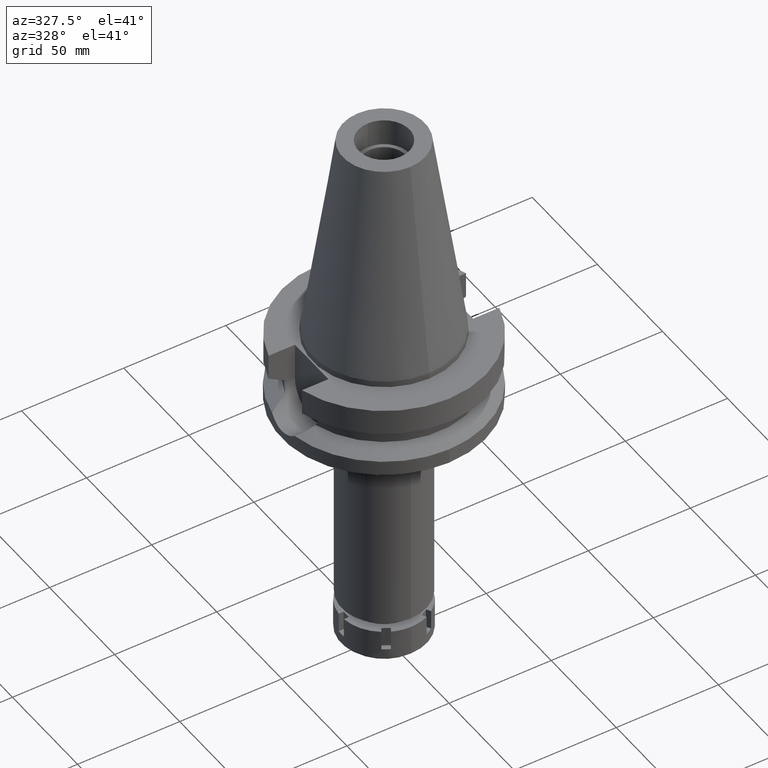
[diagram: clean part render]
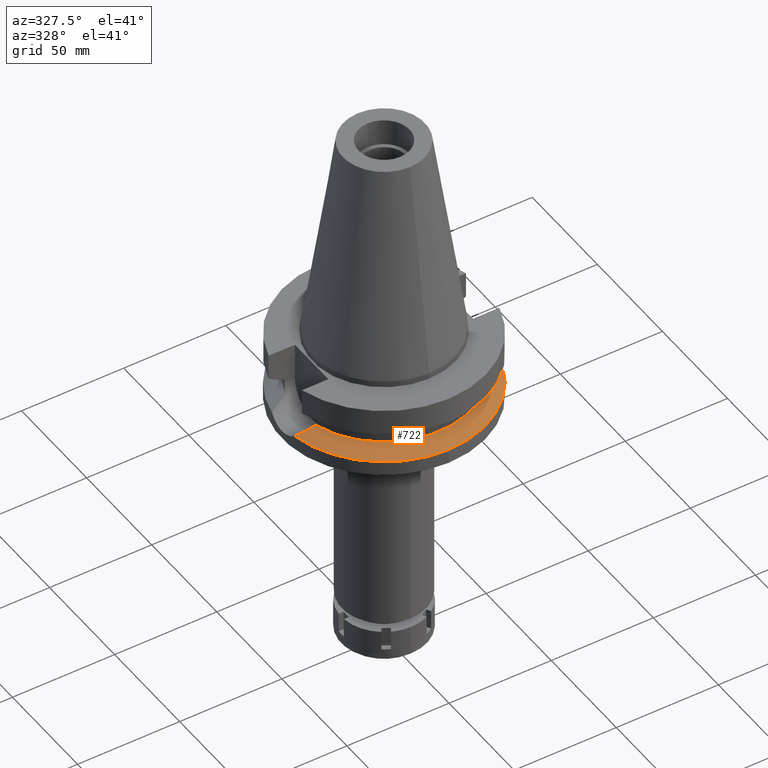
[diagram: same view with one face highlighted and labeled with its STEP entity id]
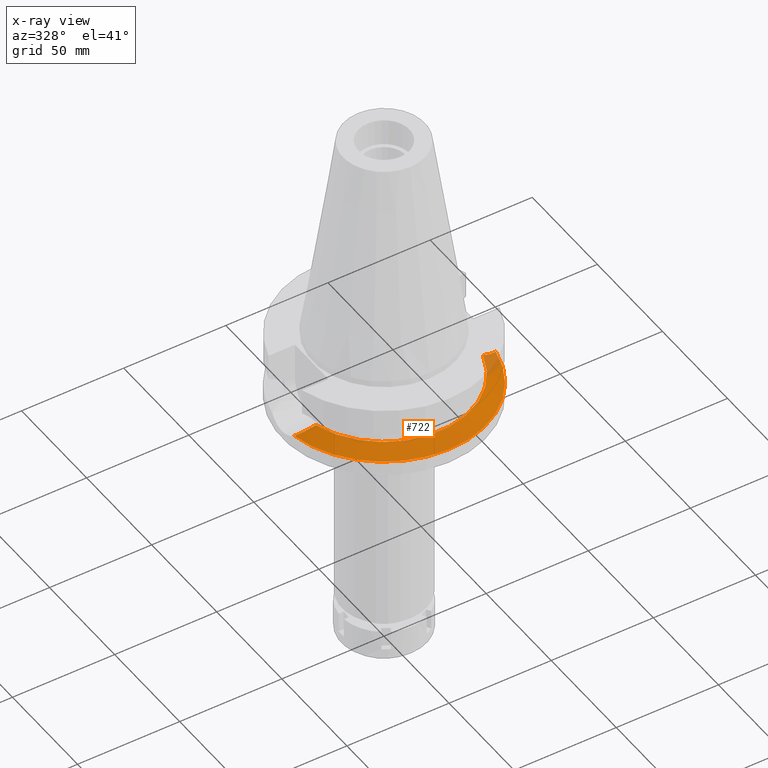
[diagram: x-ray of the same camera — body ghosted, the highlighted face saturated]
A machine part, auxiliary view. The second image highlights one B-rep face of the part: STEP entity #722.
The next image is the same camera in x-ray: the body ghosted, the highlighted face saturated — about 5% of this face is hidden behind the body in this view.
In plain terms, the highlighted conical surface has half-angle 60 deg.
Its self-contained STEP definition (entity closure, byte-faithful):
#10 = EDGE_LOOP ( 'NONE', ( #897, #3430, #1934, #252, #3532 ) ) ;
#27 = VERTEX_POINT ( 'NONE', #1557 ) ;
#72 = CARTESIAN_POINT ( 'NONE',  ( 44.08652366158886338, -10.82399127850445275, -28.07919682956623930 ) ) ;
#114 = CARTESIAN_POINT ( 'NONE',  ( -45.64115514236537763, -10.26608050230839808, -28.87892092315642500 ) ) ;
#131 = CARTESIAN_POINT ( 'NONE',  ( -46.22851604990404439, -10.03196276948648880, -29.18092708367271726 ) ) ;
#141 = CARTESIAN_POINT ( 'NONE',  ( 0.0000000000000000000, 0.0000000000000000000, -30.73730776426999967 ) ) ;
#150 = CARTESIAN_POINT ( 'NONE',  ( -45.47947479145116745, -10.32794287722815874, -28.79575928904283799 ) ) ;
#211 = CARTESIAN_POINT ( 'NONE',  ( 40.85052569294000335, -11.72538061688000077, -26.40718074535000426 ) ) ;
#222 = AXIS2_PLACEMENT_3D ( 'NONE', #141, #2730, #3286 ) ;
#252 = ORIENTED_EDGE ( 'NONE', *, *, #575, .F. ) ;
#283 = CARTESIAN_POINT ( 'NONE',  ( -49.26250064874000145, -8.556052234130000045, -30.73730776426999967 ) ) ;
#299 = VERTEX_POINT ( 'NONE', #211 ) ;
#342 = EDGE_CURVE ( 'NONE', #3143, #2336, #686, .T. ) ;
#363 = CARTESIAN_POINT ( 'NONE',  ( -45.96082933335384269, -10.14111845749937402, -29.04331959134392704 ) ) ;
#379 = CARTESIAN_POINT ( 'NONE',  ( -48.69472545312260081, -8.881879085636674276, -30.44652836828989706 ) ) ;
#418 = FACE_OUTER_BOUND ( 'NONE', #10, .T. ) ;
#575 = EDGE_CURVE ( 'NONE', #27, #299, #1780, .T. ) ;
#641 = VERTEX_POINT ( 'NONE', #1266 ) ;
#686 = CIRCLE ( 'NONE', #222, 50.00000000000000000 ) ;
#692 = EDGE_CURVE ( 'NONE', #2336, #27, #1781, .T. ) ;
#722 = ADVANCED_FACE ( 'NONE', ( #418 ), #3495, .T. ) ;
#724 = B_SPLINE_CURVE_WITH_KNOTS ( 'NONE', 3,
 ( #2347, #1509, #2937, #2640, #72, #1223, #2080, #3490, #936, #3211, #806, #2517, #828, #1903, #3350 ),
 .UNSPECIFIED., .F., .F.,
 ( 4, 2, 2, 1, 1, 1, 2, 2, 4 ),
 ( 0.0000000000000000000, 0.2500000000000003331, 0.3750000000000014988, 0.4375000000000023315, 0.4687500000000027756, 0.4843750000000040523, 0.4921875000000048295, 0.5000000000000055511, 1.000000000000000000 ),
 .UNSPECIFIED. ) ;
#740 = AXIS2_PLACEMENT_3D ( 'NONE', #1227, #3296, #1904 ) ;
#745 = AXIS2_PLACEMENT_3D ( 'NONE', #2997, #1513, #2644 ) ;
#806 = CARTESIAN_POINT ( 'NONE',  ( 45.45376346329539530, -10.33741897416011746, -28.78285341246331797 ) ) ;
#828 = CARTESIAN_POINT ( 'NONE',  ( 46.91867690740803454, -9.778675819256957169, -29.53630061612208024 ) ) ;
#897 = ORIENTED_EDGE ( 'NONE', *, *, #342, .F. ) ;
#904 = DIRECTION ( 'NONE',  ( 0.0000000000000000000, 0.0000000000000000000, 1.000000000000000000 ) ) ;
#936 = CARTESIAN_POINT ( 'NONE',  ( 45.34795488205713809, -10.37743536144881595, -28.72843099741480088 ) ) ;
#984 = CARTESIAN_POINT ( 'NONE',  ( 0.0000000000000000000, -50.00000000000000000, -30.73730776426999967 ) ) ;
#1223 = CARTESIAN_POINT ( 'NONE',  ( 44.62925775102691972, -10.63815907006330619, -28.35864658413995798 ) ) ;
#1227 = CARTESIAN_POINT ( 'NONE',  ( 0.0000000000000000000, 0.0000000000000000000, -30.73730776426999967 ) ) ;
#1266 = CARTESIAN_POINT ( 'NONE',  ( 49.26250064874000145, -8.556052234130000045, -30.73730776426999967 ) ) ;
#1281 = CARTESIAN_POINT ( 'NONE',  ( -40.85052569294000335, -11.72538061688000077, -26.40718074535000426 ) ) ;
#1509 = CARTESIAN_POINT ( 'NONE',  ( 41.72591166032965759, -11.52209110050590013, -26.86058858319618636 ) ) ;
#1513 = DIRECTION ( 'NONE',  ( 0.0000000000000000000, 0.0000000000000000000, -1.000000000000000000 ) ) ;
#1546 = CARTESIAN_POINT ( 'NONE',  ( -42.52912223676329262, -11.33556276247899497, -27.27661303910516821 ) ) ;
#1557 = CARTESIAN_POINT ( 'NONE',  ( -40.85052569294000335, -11.72538061688000077, -26.40718074535000426 ) ) ;
#1715 = CIRCLE ( 'NONE', #740, 50.00000000000000000 ) ;
#1780 = CIRCLE ( 'NONE', #2728, 42.50000000000000000 ) ;
#1781 = B_SPLINE_CURVE_WITH_KNOTS ( 'NONE', 3,
 ( #2920, #379, #2156, #2699, #2119, #131, #363, #114, #150, #3548, #3273, #2716, #3253, #2349, #1546, #1281 ),
 .UNSPECIFIED., .F., .F.,
 ( 4, 2, 2, 1, 1, 1, 1, 2, 2, 4 ),
 ( 0.0000000000000000000, 0.2500000000000850986, 0.3750000000001287859, 0.4375000000001507128, 0.4687500000001624811, 0.4843750000001693090, 0.4921875000001726952, 0.4960937500001733058, 0.5000000000001738609, 1.000000000000000000 ),
 .UNSPECIFIED. ) ;
#1903 = CARTESIAN_POINT ( 'NONE',  ( 48.17421731096948179, -9.180580984649372667, -30.17995623842555730 ) ) ;
#1904 = DIRECTION ( 'NONE',  ( 0.9852500129747439050, -0.1711210446826074982, 0.0000000000000000000 ) ) ;
#1934 = ORIENTED_EDGE ( 'NONE', *, *, #2493, .F. ) ;
#2041 = DIRECTION ( 'NONE',  ( 0.0000000000000000000, -1.000000000000000000, 0.0000000000000000000 ) ) ;
#2080 = CARTESIAN_POINT ( 'NONE',  ( 44.89588290465827214, -10.54427413037512906, -28.49587143876511419 ) ) ;
#2119 = CARTESIAN_POINT ( 'NONE',  ( -46.75546317251308892, -9.811123057261683655, -29.45172462093226429 ) ) ;
#2156 = CARTESIAN_POINT ( 'NONE',  ( -48.08200993488475916, -9.200174691293726781, -30.13261548871570383 ) ) ;
#2209 = EDGE_CURVE ( 'NONE', #641, #3143, #1715, .T. ) ;
#2336 = VERTEX_POINT ( 'NONE', #283 ) ;
#2347 = CARTESIAN_POINT ( 'NONE',  ( 40.85052569294000335, -11.72538061688000077, -26.40718074535000426 ) ) ;
#2349 = CARTESIAN_POINT ( 'NONE',  ( -44.01780220698003632, -10.87568674646942846, -28.04382532369646341 ) ) ;
#2493 = EDGE_CURVE ( 'NONE', #299, #641, #724, .T. ) ;
#2517 = CARTESIAN_POINT ( 'NONE',  ( 45.47364822759700331, -10.32986049036476572, -28.79308085105692072 ) ) ;
#2640 = CARTESIAN_POINT ( 'NONE',  ( 43.71205589239633582, -10.94529851844949953, -27.88622673543954278 ) ) ;
#2644 = DIRECTION ( 'NONE',  ( 0.0000000000000000000, -1.000000000000000000, 0.0000000000000000000 ) ) ;
#2699 = CARTESIAN_POINT ( 'NONE',  ( -47.09552617359732807, -9.660526748469512981, -29.62636400729780917 ) ) ;
#2716 = CARTESIAN_POINT ( 'NONE',  ( -45.33991514702245240, -10.38063357216712390, -28.72396869562930632 ) ) ;
#2728 = AXIS2_PLACEMENT_3D ( 'NONE', #3476, #904, #2041 ) ;
#2730 = DIRECTION ( 'NONE',  ( 0.0000000000000000000, 0.0000000000000000000, -1.000000000000000000 ) ) ;
#2920 = CARTESIAN_POINT ( 'NONE',  ( -49.26250064874000145, -8.556052234130000045, -30.73730776426999967 ) ) ;
#2937 = CARTESIAN_POINT ( 'NONE',  ( 42.55071745611744660, -11.29929319511106023, -27.28707702801668233 ) ) ;
#2997 = CARTESIAN_POINT ( 'NONE',  ( 0.0000000000000000000, 0.0000000000000000000, -28.57224425480999841 ) ) ;
#3143 = VERTEX_POINT ( 'NONE', #984 ) ;
#3211 = CARTESIAN_POINT ( 'NONE',  ( 45.41149930443869920, -10.35343463059610514, -28.76111513600022462 ) ) ;
#3253 = CARTESIAN_POINT ( 'NONE',  ( -45.32671219262632434, -10.38558514207444361, -28.71717668202665408 ) ) ;
#3273 = CARTESIAN_POINT ( 'NONE',  ( -45.36323177517924421, -10.37187135454996678, -28.73596333807657643 ) ) ;
#3286 = DIRECTION ( 'NONE',  ( 0.0000000000000000000, -1.000000000000000000, 0.0000000000000000000 ) ) ;
#3296 = DIRECTION ( 'NONE',  ( 0.0000000000000000000, 0.0000000000000000000, -1.000000000000000000 ) ) ;
#3350 = CARTESIAN_POINT ( 'NONE',  ( 49.26250064874000145, -8.556052234130000045, -30.73730776426999967 ) ) ;
#3430 = ORIENTED_EDGE ( 'NONE', *, *, #2209, .F. ) ;
#3476 = CARTESIAN_POINT ( 'NONE',  ( 0.0000000000000000000, 0.0000000000000000000, -26.40718074535000426 ) ) ;
#3490 = CARTESIAN_POINT ( 'NONE',  ( 45.19864727449142094, -10.43327437534391677, -28.65163018592970445 ) ) ;
#3495 = CONICAL_SURFACE ( 'NONE', #745, 46.25000000000000000, 1.047197551196400456 ) ;
#3532 = ORIENTED_EDGE ( 'NONE', *, *, #692, .F. ) ;
#3548 = CARTESIAN_POINT ( 'NONE',  ( -45.39817380213906972, -10.35871663422425648, -28.75393815089545058 ) ) ;